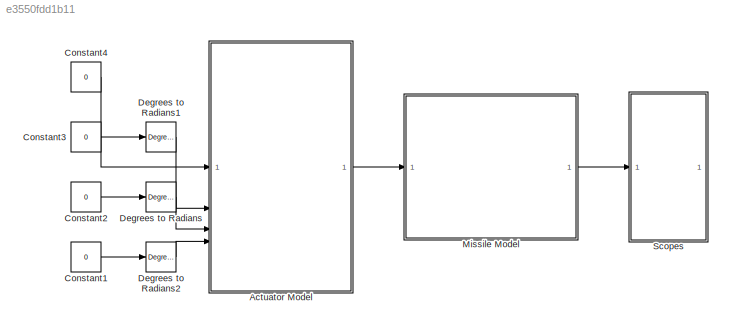
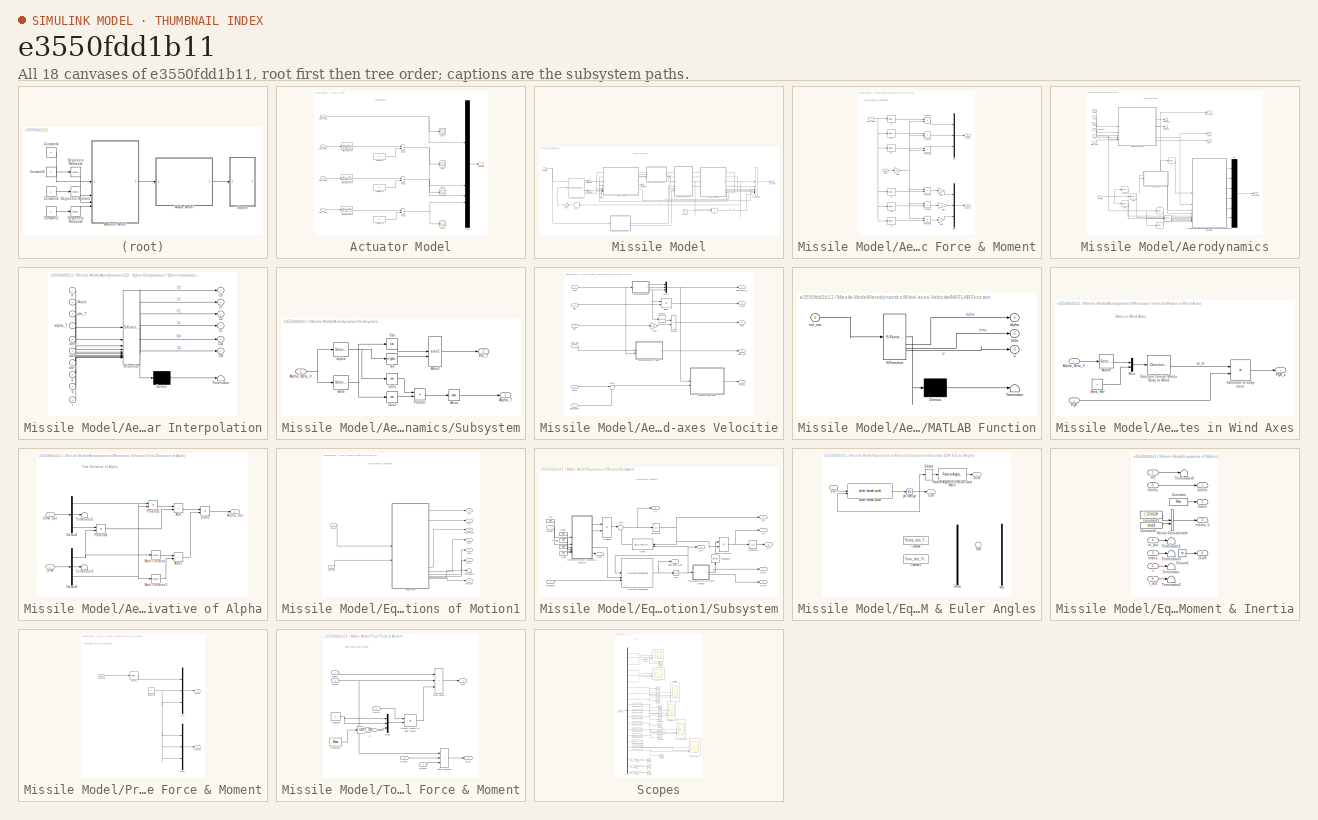
[diagram: thumbnail index - all 18 canvases of the model, root first then tree order]
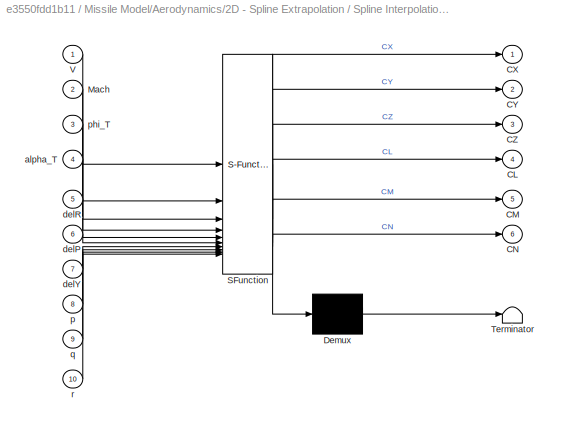
MODEL slx_e3550fdd1b11
KIND model
CONFIG AbsTol = auto
CONFIG EnableMultiTasking = off
CONFIG FixedStep = 0.01
CONFIG InitFcn = clc, clear, close all\nUAV_Data\nSim_Parameters
CONFIG MaxStep = auto
CONFIG MinStep = auto
CONFIG RelTol = 1e-3
CONFIG SampleTimeConstraint = Unconstrained
CONFIG SolverName = ode4
CONFIG StartTime = 0.0
CONFIG StopTime = 10
BLOCK [SubSystem] Actuator Model
BLOCK [TransferFcn] Actuator Model/Aileron Servo
  Denominator = [1 2*Zeta_Act*Wn_Act Wn_Act^2]
  Numerator = [Wn_Act^2]
BLOCK [Outport] Actuator Model/Controls
BLOCK [TransferFcn] Actuator Model/Elevator Servo
  Denominator = [1 2*Zeta_Act*Wn_Act Wn_Act^2]
  Numerator = [Wn_Act^2]
BLOCK [Mux] Actuator Model/Mux
  DisplayOption = bar
BLOCK [TransferFcn] Actuator Model/Rudder Servo
  Denominator = [1 2*Zeta_Act*Wn_Act Wn_Act^2]
  Numerator = [Wn_Act^2]
BLOCK [Sum] Actuator Model/Sum1
  IconShape = rectangular
  SaturateOnIntegerOverflow = on
BLOCK [Sum] Actuator Model/Sum2
  IconShape = rectangular
  SaturateOnIntegerOverflow = on
BLOCK [Sum] Actuator Model/Sum3
  IconShape = rectangular
  SaturateOnIntegerOverflow = on
BLOCK [Constant] Actuator Model/Trim del_T1
  Value = 0
BLOCK [Constant] Actuator Model/Trim del_T2
  Value = 0
BLOCK [Constant] Actuator Model/Trim del_T3
  Value = 0
BLOCK [Scope] Actuator Model/del_T
  Floating = off
  NumInputPorts = 1
  ScopeSpecificationString = Simulink.scopes.TimeScopeBlockCfg('CurrentConfiguration', extmgr.ConfigurationSet(extmgr.Configuration('Core','General UI',true),extmgr.Configuration('Core','Source UI',true),extmgr.Configuration('Sources','WiredSimulink',true,'DataLoggingVariableName','ScopeData1'),extmgr.Configuration('Visuals','Time Domain',true,'SerializedDisplays',{struct('MinYLimReal','-1.00000','MaxYLimReal','1.00000','YLab...<+1428ch>
BLOCK [Inport] Actuator Model/del_T_cmd
BLOCK [Scope] Actuator Model/del_a
  Floating = off
  NumInputPorts = 1
  ScopeSpecificationString = Simulink.scopes.TimeScopeBlockCfg('CurrentConfiguration', extmgr.ConfigurationSet(extmgr.Configuration('Core','General UI',true),extmgr.Configuration('Core','Source UI',true),extmgr.Configuration('Sources','WiredSimulink',true,'DataLoggingVariableName','ScopeData3'),extmgr.Configuration('Visuals','Time Domain',true,'SerializedDisplays',{struct('MinYLimReal','-1.00000','MaxYLimReal','1.00000','YLab...<+1388ch>
BLOCK [Inport] Actuator Model/del_a_cmd
  Port = 2
BLOCK [Scope] Actuator Model/del_e
  Floating = off
  NumInputPorts = 1
  ScopeSpecificationString = Simulink.scopes.TimeScopeBlockCfg('CurrentConfiguration', extmgr.ConfigurationSet(extmgr.Configuration('Core','General UI',true),extmgr.Configuration('Core','Source UI',true),extmgr.Configuration('Sources','WiredSimulink',true,'DataLoggingVariableName','ScopeData2'),extmgr.Configuration('Visuals','Time Domain',true,'SerializedDisplays',{struct('MinYLimReal','-1.00000','MaxYLimReal','1.00000','YLab...<+1388ch>
BLOCK [Inport] Actuator Model/del_e_cmd
  Port = 3
BLOCK [Scope] Actuator Model/del_r
  Floating = off
  NumInputPorts = 1
  ScopeSpecificationString = Simulink.scopes.TimeScopeBlockCfg('CurrentConfiguration', extmgr.ConfigurationSet(extmgr.Configuration('Core','General UI',true),extmgr.Configuration('Core','Source UI',true),extmgr.Configuration('Sources','WiredSimulink',true,'DataLoggingVariableName','ScopeData4'),extmgr.Configuration('Visuals','Time Domain',true,'SerializedDisplays',{struct('MinYLimReal','-1.00000','MaxYLimReal','1.00000','YLab...<+1388ch>
BLOCK [Inport] Actuator Model/del_r_cmd
  Port = 4
BLOCK [Constant] Constant1
  Value = 0
BLOCK [Constant] Constant2
  Value = 0
BLOCK [Constant] Constant3
  Value = 0
BLOCK [Constant] Constant4
  Value = 0
BLOCK [Reference] Degrees to Radians  REF=simulink_extras/Transformations/Degrees to
Radians
  SourceBlock = simulink_extras/Transformations/Degrees to\nRadians
  SourceType = DegreesToRadians
BLOCK [Reference] Degrees to Radians1  REF=simulink_extras/Transformations/Degrees to
Radians
  SourceBlock = simulink_extras/Transformations/Degrees to\nRadians
  SourceType = DegreesToRadians
BLOCK [Reference] Degrees to Radians2  REF=simulink_extras/Transformations/Degrees to
Radians
  SourceBlock = simulink_extras/Transformations/Degrees to\nRadians
  SourceType = DegreesToRadians
BLOCK [SubSystem] Missile Model
BLOCK [Product] Missile Model/Acc
  Inputs = */
  RndMeth = Zero
BLOCK [SubSystem] Missile Model/Aerodynamic Force & Moment
BLOCK [Inport] Missile Model/Aerodynamic Force & Moment/Aero_Coeff
BLOCK [Selector] Missile Model/Aerodynamic Force & Moment/CX
  IndexOptions = Index vector (dialog)
  Indices = [1]
  InputPortWidth = 6
  OutputSizes = 1
BLOCK [Selector] Missile Model/Aerodynamic Force & Moment/CY
  IndexOptions = Index vector (dialog)
  Indices = [2]
  InputPortWidth = 6
  OutputSizes = 1
BLOCK [Selector] Missile Model/Aerodynamic Force & Moment/CZ
  IndexOptions = Index vector (dialog)
  Indices = [3]
  InputPortWidth = 6
  OutputSizes = 1
BLOCK [Selector] Missile Model/Aerodynamic Force & Moment/Cl
  IndexOptions = Index vector (dialog)
  Indices = [4]
  InputPortWidth = 6
  OutputSizes = 1
BLOCK [Selector] Missile Model/Aerodynamic Force & Moment/Cm
  IndexOptions = Index vector (dialog)
  Indices = [5]
  InputPortWidth = 6
  OutputSizes = 1
BLOCK [Selector] Missile Model/Aerodynamic Force & Moment/Cn
  IndexOptions = Index vector (dialog)
  Indices = [6]
  InputPortWidth = 6
  OutputSizes = 1
BLOCK [Outport] Missile Model/Aerodynamic Force & Moment/F_aero
BLOCK [Gain] Missile Model/Aerodynamic Force & Moment/Gain
  Gain = S
BLOCK [Gain] Missile Model/Aerodynamic Force & Moment/Gain1
  Gain = D
BLOCK [Gain] Missile Model/Aerodynamic Force & Moment/Gain2
  Gain = D
BLOCK [Gain] Missile Model/Aerodynamic Force & Moment/Gain3
  Gain = D
BLOCK [Outport] Missile Model/Aerodynamic Force & Moment/M_aero
  Port = 2
BLOCK [Mux] Missile Model/Aerodynamic Force & Moment/Mux
  DisplayOption = bar
  Inputs = 3
BLOCK [Mux] Missile Model/Aerodynamic Force & Moment/Mux1
  DisplayOption = bar
  Inputs = 3
BLOCK [Product] Missile Model/Aerodynamic Force & Moment/Product
BLOCK [Product] Missile Model/Aerodynamic Force & Moment/Product1
BLOCK [Product] Missile Model/Aerodynamic Force & Moment/Product2
BLOCK [Product] Missile Model/Aerodynamic Force & Moment/Product3
BLOCK [Product] Missile Model/Aerodynamic Force & Moment/Product4
BLOCK [Product] Missile Model/Aerodynamic Force & Moment/Product5
BLOCK [Inport] Missile Model/Aerodynamic Force & Moment/qbar
  Port = 2
BLOCK [SubSystem] Missile Model/Aerodynamics
BLOCK [SubSystem] Missile Model/Aerodynamics/2D - Spline Extrapolation // Spline Interpolation 1D - Linear Extrapolation // Linear Interpolation
  ErrorFcn = Stateflow.Translate.translate
  LibrarySourceBlock = simulink/User-Defined\nFunctions/MATLAB Function
  PermitHierarchicalResolution = ExplicitOnly
  SFBlockType = MATLAB Function
  TreatAsAtomicUnit = on
BLOCK [Demux] Missile Model/Aerodynamics/2D - Spline Extrapolation // Spline Interpolation 1D - Linear Extrapolation // Linear Interpolation/ Demux 
  Outputs = 1
BLOCK [S-Function] Missile Model/Aerodynamics/2D - Spline Extrapolation // Spline Interpolation 1D - Linear Extrapolation // Linear Interpolation/ SFunction 
  EnableBusSupport = on
  FunctionName = sf_sfun
  PortCounts = [10 7]
  SFcnIsStateOwnerBlock = off
  SFunctionDeploymentMode = off
  Tag = Stateflow S-Function 3
BLOCK [Terminator] Missile Model/Aerodynamics/2D - Spline Extrapolation // Spline Interpolation 1D - Linear Extrapolation // Linear Interpolation/ Terminator 
BLOCK [Outport] Missile Model/Aerodynamics/2D - Spline Extrapolation // Spline Interpolation 1D - Linear Extrapolation // Linear Interpolation/CL
  Port = 4
BLOCK [Outport] Missile Model/Aerodynamics/2D - Spline Extrapolation // Spline Interpolation 1D - Linear Extrapolation // Linear Interpolation/CM
  Port = 5
BLOCK [Outport] Missile Model/Aerodynamics/2D - Spline Extrapolation // Spline Interpolation 1D - Linear Extrapolation // Linear Interpolation/CN
  Port = 6
BLOCK [Outport] Missile Model/Aerodynamics/2D - Spline Extrapolation // Spline Interpolation 1D - Linear Extrapolation // Linear Interpolation/CX
BLOCK [Outport] Missile Model/Aerodynamics/2D - Spline Extrapolation // Spline Interpolation 1D - Linear Extrapolation // Linear Interpolation/CY
  Port = 2
BLOCK [Outport] Missile Model/Aerodynamics/2D - Spline Extrapolation // Spline Interpolation 1D - Linear Extrapolation // Linear Interpolation/CZ
  Port = 3
BLOCK [Inport] Missile Model/Aerodynamics/2D - Spline Extrapolation // Spline Interpolation 1D - Linear Extrapolation // Linear Interpolation/Mach
  Port = 2
BLOCK [Inport] Missile Model/Aerodynamics/2D - Spline Extrapolation // Spline Interpolation 1D - Linear Extrapolation // Linear Interpolation/V
BLOCK [Inport] Missile Model/Aerodynamics/2D - Spline Extrapolation // Spline Interpolation 1D - Linear Extrapolation // Linear Interpolation/alpha_T
  Port = 4
BLOCK [Inport] Missile Model/Aerodynamics/2D - Spline Extrapolation // Spline Interpolation 1D - Linear Extrapolation // Linear Interpolation/delP
  Port = 6
BLOCK [Inport] Missile Model/Aerodynamics/2D - Spline Extrapolation // Spline Interpolation 1D - Linear Extrapolation // Linear Interpolation/delR
  Port = 5
BLOCK [Inport] Missile Model/Aerodynamics/2D - Spline Extrapolation // Spline Interpolation 1D - Linear Extrapolation // Linear Interpolation/delY
  Port = 7
BLOCK [Inport] Missile Model/Aerodynamics/2D - Spline Extrapolation // Spline Interpolation 1D - Linear Extrapolation // Linear Interpolation/p
  Port = 8
BLOCK [Inport] Missile Model/Aerodynamics/2D - Spline Extrapolation // Spline Interpolation 1D - Linear Extrapolation // Linear Interpolation/phi_T
  Port = 3
BLOCK [Inport] Missile Model/Aerodynamics/2D - Spline Extrapolation // Spline Interpolation 1D - Linear Extrapolation // Linear Interpolation/q
  Port = 9
BLOCK [Inport] Missile Model/Aerodynamics/2D - Spline Extrapolation // Spline Interpolation 1D - Linear Extrapolation // Linear Interpolation/r
  Port = 10
BLOCK [Outport] Missile Model/Aerodynamics/Aero_Coeff
BLOCK [Outport] Missile Model/Aerodynamics/Alpha_Beta_V
  Port = 4
BLOCK [Inport] Missile Model/Aerodynamics/Controls
BLOCK [Outport] Missile Model/Aerodynamics/Mach
  Port = 3
BLOCK [Mux] Missile Model/Aerodynamics/Mux
  DisplayOption = bar
  Inputs = 6
BLOCK [Inport] Missile Model/Aerodynamics/PQR
  Port = 3
BLOCK [Inport] Missile Model/Aerodynamics/Rho
  Port = 6
BLOCK [Inport] Missile Model/Aerodynamics/SoS
  Port = 5
BLOCK [SubSystem] Missile Model/Aerodynamics/Subsystem
BLOCK [Trigonometry] Missile Model/Aerodynamics/Subsystem/Acos
  Operator = acos
BLOCK [Inport] Missile Model/Aerodynamics/Subsystem/Alpha_Beta_V
BLOCK [Outport] Missile Model/Aerodynamics/Subsystem/Alpha_T
  Port = 2
BLOCK [Trigonometry] Missile Model/Aerodynamics/Subsystem/Atan2
  Operator = atan2
BLOCK [Selector] Missile Model/Aerodynamics/Subsystem/Beta
  IndexOptions = Index vector (dialog)
  Indices = [2]
  InputPortWidth = 3
  OutputSizes = 1
BLOCK [Trigonometry] Missile Model/Aerodynamics/Subsystem/Cos1
  Operator = cos
BLOCK [Trigonometry] Missile Model/Aerodynamics/Subsystem/Cos2
  Operator = cos
BLOCK [Outport] Missile Model/Aerodynamics/Subsystem/Phi_T
BLOCK [Product] Missile Model/Aerodynamics/Subsystem/Product
BLOCK [Trigonometry] Missile Model/Aerodynamics/Subsystem/Sin
BLOCK [Trigonometry] Missile Model/Aerodynamics/Subsystem/Tan
  Operator = tan
BLOCK [Selector] Missile Model/Aerodynamics/Subsystem/alpha
  IndexOptions = Index vector (dialog)
  Indices = [1]
  InputPortWidth = 3
  OutputSizes = 1
BLOCK [Terminator] Missile Model/Aerodynamics/Terminator
BLOCK [Terminator] Missile Model/Aerodynamics/Terminator1
BLOCK [Inport] Missile Model/Aerodynamics/UVW
  Port = 2
BLOCK [Inport] Missile Model/Aerodynamics/UVW_dot 
  Port = 4
BLOCK [Selector] Missile Model/Aerodynamics/V
  IndexOptions = Index vector (dialog)
  Indices = [3]
  InputPortWidth = 3
  OutputSizes = 1
BLOCK [SubSystem] Missile Model/Aerodynamics/Wind-axes Velocitie
BLOCK [Outport] Missile Model/Aerodynamics/Wind-axes Velocitie/Alpha_Beta_V
BLOCK [Product] Missile Model/Aerodynamics/Wind-axes Velocitie/Divide
  Inputs = */
BLOCK [Gain] Missile Model/Aerodynamics/Wind-axes Velocitie/Gain
  Gain = 0.5
BLOCK [SubSystem] Missile Model/Aerodynamics/Wind-axes Velocitie/MATLAB Function
  ErrorFcn = Stateflow.Translate.translate
  LibrarySourceBlock = simulink/User-Defined\nFunctions/MATLAB Function
  PermitHierarchicalResolution = ExplicitOnly
  SFBlockType = MATLAB Function
  TreatAsAtomicUnit = on
BLOCK [Demux] Missile Model/Aerodynamics/Wind-axes Velocitie/MATLAB Function/ Demux 
  Outputs = 1
BLOCK [S-Function] Missile Model/Aerodynamics/Wind-axes Velocitie/MATLAB Function/ SFunction 
  EnableBusSupport = on
  FunctionName = sf_sfun
  PortCounts = [1 4]
  SFcnIsStateOwnerBlock = off
  SFunctionDeploymentMode = off
  Tag = Stateflow S-Function 1
BLOCK [Terminator] Missile Model/Aerodynamics/Wind-axes Velocitie/MATLAB Function/ Terminator 
BLOCK [Outport] Missile Model/Aerodynamics/Wind-axes Velocitie/MATLAB Function/V
  Port = 3
BLOCK [Outport] Missile Model/Aerodynamics/Wind-axes Velocitie/MATLAB Function/alpha
BLOCK [Outport] Missile Model/Aerodynamics/Wind-axes Velocitie/MATLAB Function/beta
  Port = 2
BLOCK [Inport] Missile Model/Aerodynamics/Wind-axes Velocitie/MATLAB Function/vel_vec
BLOCK [Outport] Missile Model/Aerodynamics/Wind-axes Velocitie/Mach
  Port = 4
BLOCK [Mux] Missile Model/Aerodynamics/Wind-axes Velocitie/Mux1
  DisplayOption = bar
  Inputs = 3
BLOCK [Inport] Missile Model/Aerodynamics/Wind-axes Velocitie/PQR
  Port = 5
BLOCK [Outport] Missile Model/Aerodynamics/Wind-axes Velocitie/PQR_s
  Port = 2
BLOCK [Product] Missile Model/Aerodynamics/Wind-axes Velocitie/Product
BLOCK [SubSystem] Missile Model/Aerodynamics/Wind-axes Velocitie/Rates in Wind Axes
BLOCK [Selector] Missile Model/Aerodynamics/Wind-axes Velocitie/Rates in Wind Axes/Alpha
  IndexOptions = Index vector (dialog)
  Indices = [1]
  InputPortWidth = 3
  OutputSizes = 1
BLOCK [Inport] Missile Model/Aerodynamics/Wind-axes Velocitie/Rates in Wind Axes/Alpha_Beta_V
BLOCK [Constant] Missile Model/Aerodynamics/Wind-axes Velocitie/Rates in Wind Axes/Beta_Ref
  Value = 0
BLOCK [Reference] Missile Model/Aerodynamics/Wind-axes Velocitie/Rates in Wind Axes/Direction Cosine Matrix Body to Wind  REF=aerolibtransform2/Direction Cosine Matrix
Body to Wind
  SourceBlock = aerolibtransform2/Direction Cosine Matrix\nBody to Wind
  SourceType = DCM Body to Wind
BLOCK [Mux] Missile Model/Aerodynamics/Wind-axes Velocitie/Rates in Wind Axes/Mux
  DisplayOption = bar
  Inputs = 2
BLOCK [Inport] Missile Model/Aerodynamics/Wind-axes Velocitie/Rates in Wind Axes/PQR
  Port = 2
BLOCK [Outport] Missile Model/Aerodynamics/Wind-axes Velocitie/Rates in Wind Axes/PQR_s
BLOCK [Product] Missile Model/Aerodynamics/Wind-axes Velocitie/Rates in Wind Axes/transform to body axes
  InputSameDT = on
  Inputs = **
  Multiplication = Matrix(*)
  OutDataTypeStr = Inherit: Same as first input
  SaturateOnIntegerOverflow = on
BLOCK [Inport] Missile Model/Aerodynamics/Wind-axes Velocitie/Rho
  Port = 3
BLOCK [Inport] Missile Model/Aerodynamics/Wind-axes Velocitie/SoS
  Port = 2
BLOCK [Math] Missile Model/Aerodynamics/Wind-axes Velocitie/Square
  Operator = square
BLOCK [Sum] Missile Model/Aerodynamics/Wind-axes Velocitie/Sum3
  InputSameDT = on
  Inputs = |+-
  OutDataTypeStr = Inherit: Same as first input
  SaturateOnIntegerOverflow = on
BLOCK [SubSystem] Missile Model/Aerodynamics/Wind-axes Velocitie/Time-Derivative of Alpha
BLOCK [Sum] Missile Model/Aerodynamics/Wind-axes Velocitie/Time-Derivative of Alpha/Add
  IconShape = rectangular
  Inputs = -+
BLOCK [Sum] Missile Model/Aerodynamics/Wind-axes Velocitie/Time-Derivative of Alpha/Add1
  IconShape = rectangular
BLOCK [Outport] Missile Model/Aerodynamics/Wind-axes Velocitie/Time-Derivative of Alpha/Alpha_dot
BLOCK [Demux] Missile Model/Aerodynamics/Wind-axes Velocitie/Time-Derivative of Alpha/Demux2
  Outputs = 3
BLOCK [Demux] Missile Model/Aerodynamics/Wind-axes Velocitie/Time-Derivative of Alpha/Demux3
  Outputs = 3
BLOCK [Product] Missile Model/Aerodynamics/Wind-axes Velocitie/Time-Derivative of Alpha/Divide
  Inputs = */
BLOCK [Math] Missile Model/Aerodynamics/Wind-axes Velocitie/Time-Derivative of Alpha/Math Function2
  Operator = square
  SignedPower = on
BLOCK [Math] Missile Model/Aerodynamics/Wind-axes Velocitie/Time-Derivative of Alpha/Math Function3
  Operator = square
  SignedPower = on
BLOCK [Product] Missile Model/Aerodynamics/Wind-axes Velocitie/Time-Derivative of Alpha/Product3
BLOCK [Product] Missile Model/Aerodynamics/Wind-axes Velocitie/Time-Derivative of Alpha/Product4
BLOCK [Terminator] Missile Model/Aerodynamics/Wind-axes Velocitie/Time-Derivative of Alpha/Terminator2
BLOCK [Terminator] Missile Model/Aerodynamics/Wind-axes Velocitie/Time-Derivative of Alpha/Terminator3
BLOCK [Inport] Missile Model/Aerodynamics/Wind-axes Velocitie/Time-Derivative of Alpha/UVW
  Port = 2
BLOCK [Inport] Missile Model/Aerodynamics/Wind-axes Velocitie/Time-Derivative of Alpha/UVW_dot
BLOCK [Inport] Missile Model/Aerodynamics/Wind-axes Velocitie/UVW
BLOCK [Inport] Missile Model/Aerodynamics/Wind-axes Velocitie/UVW_dot
  Port = 4
BLOCK [Inport] Missile Model/Aerodynamics/Wind-axes Velocitie/Wind_Rate
  Port = 6
BLOCK [Outport] Missile Model/Aerodynamics/Wind-axes Velocitie/alpha_dot
  Port = 3
BLOCK [Outport] Missile Model/Aerodynamics/Wind-axes Velocitie/qbar
  Port = 5
BLOCK [Inport] Missile Model/Aerodynamics/Wind_Rate
  Port = 7
BLOCK [Selector] Missile Model/Aerodynamics/delP
  IndexOptions = Index vector (dialog)
  Indices = [3]
  InputPortWidth = 4
  OutputSizes = 1
BLOCK [Selector] Missile Model/Aerodynamics/delR
  IndexOptions = Index vector (dialog)
  Indices = [2]
  InputPortWidth = 4
  OutputSizes = 1
BLOCK [Selector] Missile Model/Aerodynamics/delY
  IndexOptions = Index vector (dialog)
  Indices = [4]
  InputPortWidth = 4
  OutputSizes = 1
BLOCK [Selector] Missile Model/Aerodynamics/p
  IndexOptions = Index vector (dialog)
  Indices = [1]
  InputPortWidth = 3
  OutputSizes = 1
BLOCK [Selector] Missile Model/Aerodynamics/q
  IndexOptions = Index vector (dialog)
  Indices = [2]
  InputPortWidth = 3
  OutputSizes = 1
BLOCK [Outport] Missile Model/Aerodynamics/qbar
  Port = 2
BLOCK [Selector] Missile Model/Aerodynamics/r
  IndexOptions = Index vector (dialog)
  Indices = [3]
  InputPortWidth = 3
  OutputSizes = 1
BLOCK [BusCreator] Missile Model/Bus Creator
  DisplayOption = bar
  InheritFromInputs = on
  Inputs = 7
BLOCK [Constant] Missile Model/Constant
  Value = Mass
BLOCK [Inport] Missile Model/Controls
BLOCK [SubSystem] Missile Model/Equations of Motion1
BLOCK [Inport] Missile Model/Equations of Motion1/Force
  PortDimensions = 3
BLOCK [Inport] Missile Model/Equations of Motion1/Moment
  Port = 2
  PortDimensions = 3
BLOCK [Outport] Missile Model/Equations of Motion1/PQR
  Port = 4
BLOCK [Outport] Missile Model/Equations of Motion1/Phi_The_Psi
  Port = 5
BLOCK [SubSystem] Missile Model/Equations of Motion1/Subsystem
BLOCK [Outport] Missile Model/Equations of Motion1/Subsystem/Ab
  Port = 8
BLOCK [SubSystem] Missile Model/Equations of Motion1/Subsystem/Calculate DCM & Euler Angles
BLOCK [Constant] Missile Model/Equations of Motion1/Subsystem/Calculate DCM & Euler Angles/Constant
  Commented = on
  Value = Theta_dot_Trim
BLOCK [Constant] Missile Model/Equations of Motion1/Subsystem/Calculate DCM & Euler Angles/Constant1
  Commented = on
  Value = Turn_dot_Trim
BLOCK [Outport] Missile Model/Equations of Motion1/Subsystem/Calculate DCM & Euler Angles/DCM
BLOCK [Demux] Missile Model/Equations of Motion1/Subsystem/Calculate DCM & Euler Angles/Demux
  Commented = on
  Outputs = 3
BLOCK [Outport] Missile Model/Equations of Motion1/Subsystem/Calculate DCM & Euler Angles/Euler
  Port = 2
BLOCK [Mux] Missile Model/Equations of Motion1/Subsystem/Calculate DCM & Euler Angles/Mux
  Commented = on
  DisplayOption = bar
  Inputs = 3
BLOCK [Reference] Missile Model/Equations of Motion1/Subsystem/Calculate DCM & Euler Angles/Rotation Angles to Direction Cosine Matrix  REF=sharedtransform/Rotation Angles to
Direction Cosine Matrix
  AttributesFormatString = Rotation Order: %<rotationOrder>
  LibrarySourceBlock = aerolibtransform2/Rotation Angles to\nDirection Cosine Matrix
  SourceBlock = sharedtransform/Rotation Angles to\nDirection Cosine Matrix
  SourceType = Ang2DCM
BLOCK [Selector] Missile Model/Equations of Motion1/Subsystem/Calculate DCM & Euler Angles/Selector
  IndexOptions = Index vector (dialog)
  Indices = [3 2 1]
  InputPortWidth = 3
  OutputSizes = 1
BLOCK [Sum] Missile Model/Equations of Motion1/Subsystem/Calculate DCM & Euler Angles/Sum
  Commented = on
  Inputs = |+-
BLOCK [Inport] Missile Model/Equations of Motion1/Subsystem/Calculate DCM & Euler Angles/p q r 
BLOCK [Integrator] Missile Model/Equations of Motion1/Subsystem/Calculate DCM & Euler Angles/phi theta psi
  InitialCondition = Init_Euler
BLOCK [Reference] Missile Model/Equations of Motion1/Subsystem/Calculate DCM & Euler Angles/phidot thetadot psidot  REF=shared6dofsys/DCM & Euler Angles (Euler)/phidot  (lib defined in slx_91fbb8bad28b)
thetadot
psidot
  SourceBlock = shared6dofsys/DCM & Euler Angles (Euler)/phidot\nthetadot\npsidot
  SourceType = SubSystem
BLOCK [Reference] Missile Model/Equations of Motion1/Subsystem/Calculate omega_dot  REF=shared6dofsys/Calculate omega_dot  (lib defined in slx_91fbb8bad28b)
  SourceBlock = shared6dofsys/Calculate omega_dot
BLOCK [Outport] Missile Model/Equations of Motion1/Subsystem/DCM
  Port = 4
BLOCK [SubSystem] Missile Model/Equations of Motion1/Subsystem/Determine Force, Moment & Inertia
BLOCK [Constant] Missile Model/Equations of Motion1/Subsystem/Determine Force, Moment & Inertia/Constant
  OutDataTypeStr = Inherit: Inherit via back propagation
  Value = Mass
BLOCK [Constant] Missile Model/Equations of Motion1/Subsystem/Determine Force, Moment & Inertia/Constant1
  OutDataTypeStr = Inherit: Inherit via back propagation
  Value = I_TENSOR
BLOCK [Constant] Missile Model/Equations of Motion1/Subsystem/Determine Force, Moment & Inertia/Constant2
  Value = zeros(3)
BLOCK [Ground] Missile Model/Equations of Motion1/Subsystem/Determine Force, Moment & Inertia/Ground
BLOCK [Inport] Missile Model/Equations of Motion1/Subsystem/Determine Force, Moment & Inertia/I
  OutDataTypeStr = double
  Port = 5
BLOCK [Inport] Missile Model/Equations of Motion1/Subsystem/Determine Force, Moment & Inertia/I_dot
  OutDataTypeStr = double
  Port = 6
BLOCK [Outport] Missile Model/Equations of Motion1/Subsystem/Determine Force, Moment & Inertia/Out9
  Port = 4
BLOCK [Terminator] Missile Model/Equations of Motion1/Subsystem/Determine Force, Moment & Inertia/Terminator
BLOCK [Terminator] Missile Model/Equations of Motion1/Subsystem/Determine Force, Moment & Inertia/Terminator1
BLOCK [Terminator] Missile Model/Equations of Motion1/Subsystem/Determine Force, Moment & Inertia/Terminator2
BLOCK [Terminator] Missile Model/Equations of Motion1/Subsystem/Determine Force, Moment & Inertia/Terminator3
BLOCK [Terminator] Missile Model/Equations of Motion1/Subsystem/Determine Force, Moment & Inertia/Terminator4
BLOCK [Concatenate] Missile Model/Equations of Motion1/Subsystem/Determine Force, Moment & Inertia/Vector Concatenate
  Mode = Multidimensional array
BLOCK [Inport] Missile Model/Equations of Motion1/Subsystem/Determine Force, Moment & Inertia/Vre
BLOCK [Inport] Missile Model/Equations of Motion1/Subsystem/Determine Force, Moment & Inertia/forces
  Port = 2
BLOCK [Outport] Missile Model/Equations of Motion1/Subsystem/Determine Force, Moment & Inertia/forces 
BLOCK [Outport] Missile Model/Equations of Motion1/Subsystem/Determine Force, Moment & Inertia/inertia, 0
  Port = 3
BLOCK [Inport] Missile Model/Equations of Motion1/Subsystem/Determine Force, Moment & Inertia/m_dot
  OutDataTypeStr = double
  Port = 4
BLOCK [Outport] Missile Model/Equations of Motion1/Subsystem/Determine Force, Moment & Inertia/mass
  Port = 2
BLOCK [Inport] Missile Model/Equations of Motion1/Subsystem/Determine Force, Moment & Inertia/mass 
  Port = 3
BLOCK [Outport] Missile Model/Equations of Motion1/Subsystem/Euler
  Port = 3
BLOCK [Inport] Missile Model/Equations of Motion1/Subsystem/Forces
  PortDimensions = 3
BLOCK [Ground] Missile Model/Equations of Motion1/Subsystem/I
BLOCK [Ground] Missile Model/Equations of Motion1/Subsystem/I_dot
BLOCK [Integrator] Missile Model/Equations of Motion1/Subsystem/Integrator
  InitialCondition = Init_Pos
BLOCK [Product] Missile Model/Equations of Motion1/Subsystem/Matrix Multiply
  Multiplication = Matrix(*)
BLOCK [Inport] Missile Model/Equations of Motion1/Subsystem/Moments
  Port = 2
  PortDimensions = 3
BLOCK [Terminator] Missile Model/Equations of Motion1/Subsystem/Out9
BLOCK [Product] Missile Model/Equations of Motion1/Subsystem/Product
  Inputs = */
  OutDataTypeStr = Inherit: Same as first input
  SaturateOnIntegerOverflow = on
BLOCK [Sum] Missile Model/Equations of Motion1/Subsystem/Sum
  Inputs = |++
  SaturateOnIntegerOverflow = on
BLOCK [Math] Missile Model/Equations of Motion1/Subsystem/Transpose
  NameLocation = right
  Operator = transpose
  SignedPower = on
BLOCK [Outport] Missile Model/Equations of Motion1/Subsystem/Vb
  Port = 5
BLOCK [Reference] Missile Model/Equations of Motion1/Subsystem/Vbxw  REF=sharedutil/3x3 Cross Product
  LibrarySourceBlock = aerolibutil/3x3 Cross Product
  SourceBlock = sharedutil/3x3 Cross Product
  SourceType = CrossProduct
BLOCK [Outport] Missile Model/Equations of Motion1/Subsystem/Ve
BLOCK [Ground] Missile Model/Equations of Motion1/Subsystem/Vre
BLOCK [Outport] Missile Model/Equations of Motion1/Subsystem/Xe
  Port = 2
BLOCK [Ground] Missile Model/Equations of Motion1/Subsystem/m_dot
BLOCK [Ground] Missile Model/Equations of Motion1/Subsystem/mass
BLOCK [Outport] Missile Model/Equations of Motion1/Subsystem/p,q,r
  Port = 6
BLOCK [Integrator] Missile Model/Equations of Motion1/Subsystem/p,q,r 
  InitialCondition = Init_Rate
BLOCK [Outport] Missile Model/Equations of Motion1/Subsystem/pdot,qdot,rdot
  Port = 7
BLOCK [Integrator] Missile Model/Equations of Motion1/Subsystem/ub,vb,wb
  InitialCondition = Init_Vel
BLOCK [Terminator] Missile Model/Equations of Motion1/Terminator
BLOCK [Outport] Missile Model/Equations of Motion1/UVW
  Port = 3
BLOCK [Outport] Missile Model/Equations of Motion1/UVW_dot
  Port = 6
BLOCK [Outport] Missile Model/Equations of Motion1/V_e
  Port = 2
BLOCK [Outport] Missile Model/Equations of Motion1/X_e
BLOCK [Outport] Missile Model/Equations of Motion1/cE_B
  Port = 7
BLOCK [Gain] Missile Model/Gain
  Gain = -1
BLOCK [Ground] Missile Model/Ground
BLOCK [Reference] Missile Model/ISA Atmosphere Model  REF=aerolibatmos2/ISA Atmosphere Model
  SourceBlock = aerolibatmos2/ISA Atmosphere Model
  SourceType = International Standard Atmosphere Model
BLOCK [SubSystem] Missile Model/Propulsive Force & Moment
BLOCK [Constant] Missile Model/Propulsive Force & Moment/Constant
  Value = 0
BLOCK [Inport] Missile Model/Propulsive Force & Moment/Controls
BLOCK [Outport] Missile Model/Propulsive Force & Moment/F_prop
BLOCK [Outport] Missile Model/Propulsive Force & Moment/M_prop
  Port = 2
BLOCK [Mux] Missile Model/Propulsive Force & Moment/Mux
  DisplayOption = bar
  Inputs = 3
BLOCK [Mux] Missile Model/Propulsive Force & Moment/Mux1
  DisplayOption = bar
  Inputs = 3
BLOCK [Selector] Missile Model/Propulsive Force & Moment/Thrust
  IndexOptions = Index vector (dialog)
  Indices = [1]
  InputPortWidth = 4
  OutputSizes = 1
BLOCK [Terminator] Missile Model/Terminator
BLOCK [Terminator] Missile Model/Terminator1
BLOCK [Terminator] Missile Model/Terminator2
BLOCK [SubSystem] Missile Model/Total Force & Moment
BLOCK [Constant] Missile Model/Total Force & Moment/Constant
  Value = 0
BLOCK [Constant] Missile Model/Total Force & Moment/Constant1
  Value = Mass
BLOCK [Inport] Missile Model/Total Force & Moment/DCM
  Port = 4
BLOCK [Inport] Missile Model/Total Force & Moment/F_aero
  PortDimensions = 3
BLOCK [Outport] Missile Model/Total Force & Moment/F_cg
BLOCK [Inport] Missile Model/Total Force & Moment/F_prop
  Port = 3
  PortDimensions = 3
BLOCK [Product] Missile Model/Total Force & Moment/Gravity vector in body frame 
  InputSameDT = on
  Multiplication = Matrix(*)
  OutDataTypeStr = Inherit: Same as first input
  SaturateOnIntegerOverflow = on
BLOCK [Inport] Missile Model/Total Force & Moment/M_aero
  Port = 2
  PortDimensions = 3
BLOCK [Outport] Missile Model/Total Force & Moment/M_cg
  Port = 2
BLOCK [Inport] Missile Model/Total Force & Moment/M_prop
  Port = 5
  PortDimensions = 3
BLOCK [Mux] Missile Model/Total Force & Moment/Mux1
  DisplayOption = bar
  Inputs = 3
BLOCK [Sum] Missile Model/Total Force & Moment/Total Force
  IconShape = rectangular
  InputSameDT = on
  Inputs = +++
  OutDataTypeStr = Inherit: Same as first input
  SaturateOnIntegerOverflow = on
BLOCK [Sum] Missile Model/Total Force & Moment/Total Moment
  IconShape = rectangular
  InputSameDT = on
  Inputs = +++
  OutDataTypeStr = Inherit: Same as first input
  SaturateOnIntegerOverflow = on
BLOCK [Gain] Missile Model/Total Force & Moment/g
  Gain = UNIT_GRAV
BLOCK [Outport] Missile Model/UAS State
BLOCK [Selector] Missile Model/Z_e
  IndexOptions = Index vector (dialog)
  Indices = [3]
  InputPortWidth = 3
  OutputSizes = 1
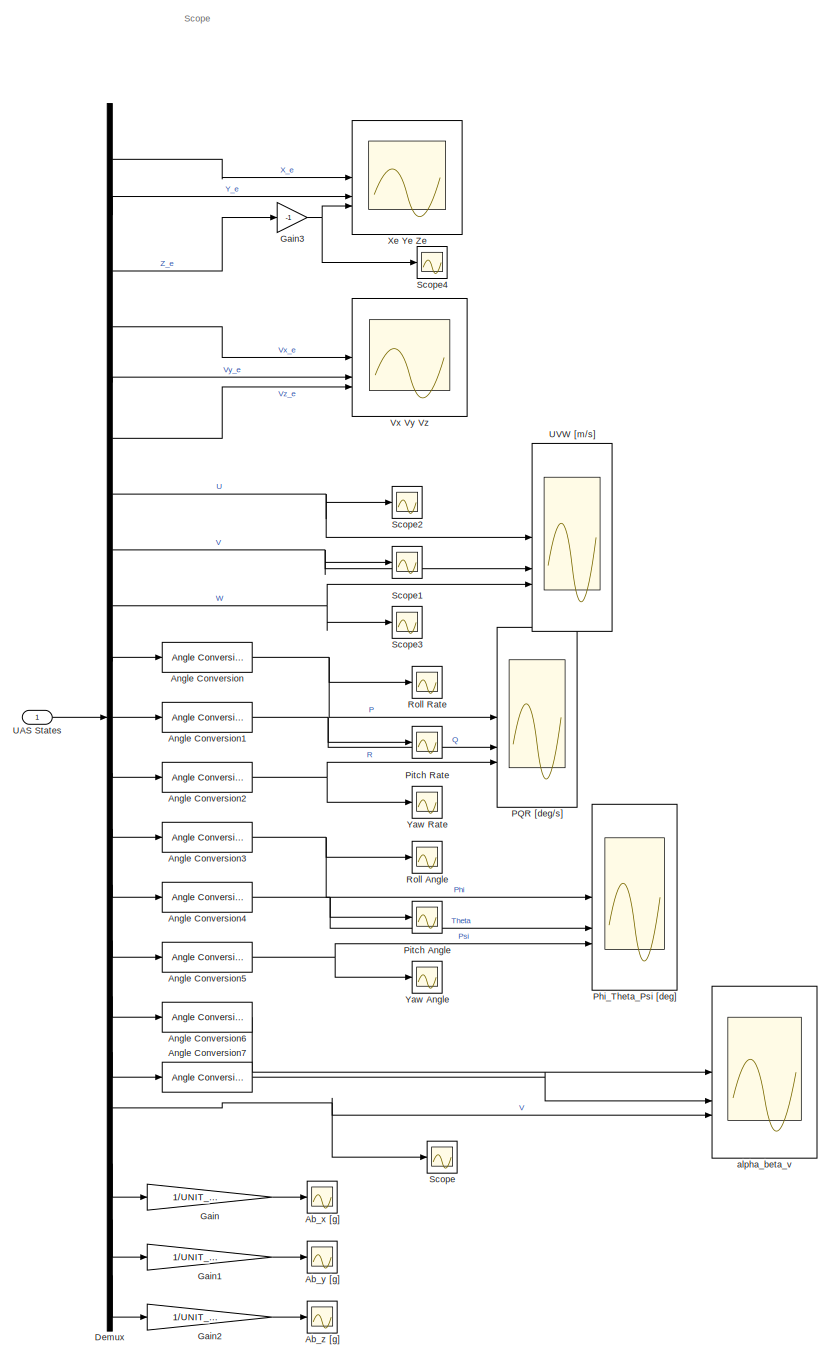
[diagram: Scopes - part 1/1, most of the canvas]
BLOCK [SubSystem] Scopes
BLOCK [Scope] Scopes/Ab_x [g]
  Floating = off
  NumInputPorts = 1
  ScopeSpecificationString = Simulink.scopes.TimeScopeBlockCfg('CurrentConfiguration', extmgr.ConfigurationSet(extmgr.Configuration('Core','General UI',true),extmgr.Configuration('Core','Source UI',true),extmgr.Configuration('Sources','WiredSimulink',true,'DataLoggingVariableName','Xe18','DataLoggingSaveFormat','Array'),extmgr.Configuration('Visuals','Time Domain',true,'SerializedDisplays',{struct('MinYLimReal','-0.6676','Max...<+1412ch>
BLOCK [Scope] Scopes/Ab_y [g]
  Floating = off
  NumInputPorts = 1
  ScopeSpecificationString = Simulink.scopes.TimeScopeBlockCfg('CurrentConfiguration', extmgr.ConfigurationSet(extmgr.Configuration('Core','General UI',true),extmgr.Configuration('Core','Source UI',true),extmgr.Configuration('Sources','WiredSimulink',true,'DataLoggingVariableName','Xe19','DataLoggingSaveFormat','Array'),extmgr.Configuration('Visuals','Time Domain',true,'SerializedDisplays',{struct('MinYLimReal','-1.00000','Ma...<+1415ch>
BLOCK [Scope] Scopes/Ab_z [g]
  Floating = off
  NumInputPorts = 1
  ScopeSpecificationString = Simulink.scopes.TimeScopeBlockCfg('CurrentConfiguration', extmgr.ConfigurationSet(extmgr.Configuration('Core','General UI',true),extmgr.Configuration('Core','Source UI',true),extmgr.Configuration('Sources','WiredSimulink',true,'DataLoggingVariableName','Xe20','DataLoggingSaveFormat','Array'),extmgr.Configuration('Visuals','Time Domain',true,'SerializedDisplays',{struct('MinYLimReal','-0.14493','Ma...<+1390ch>
BLOCK [Reference] Scopes/Angle Conversion  REF=aerolibconvert2/Angle Conversion
  SourceBlock = aerolibconvert2/Angle Conversion
  SourceType = Angle Conversion
BLOCK [Reference] Scopes/Angle Conversion1  REF=aerolibconvert2/Angle Conversion
  SourceBlock = aerolibconvert2/Angle Conversion
  SourceType = Angle Conversion
BLOCK [Reference] Scopes/Angle Conversion2  REF=aerolibconvert2/Angle Conversion
  SourceBlock = aerolibconvert2/Angle Conversion
  SourceType = Angle Conversion
BLOCK [Reference] Scopes/Angle Conversion3  REF=aerolibconvert2/Angle Conversion
  SourceBlock = aerolibconvert2/Angle Conversion
  SourceType = Angle Conversion
BLOCK [Reference] Scopes/Angle Conversion4  REF=aerolibconvert2/Angle Conversion
  SourceBlock = aerolibconvert2/Angle Conversion
  SourceType = Angle Conversion
BLOCK [Reference] Scopes/Angle Conversion5  REF=aerolibconvert2/Angle Conversion
  SourceBlock = aerolibconvert2/Angle Conversion
  SourceType = Angle Conversion
BLOCK [Reference] Scopes/Angle Conversion6  REF=aerolibconvert2/Angle Conversion
  SourceBlock = aerolibconvert2/Angle Conversion
  SourceType = Angle Conversion
BLOCK [Reference] Scopes/Angle Conversion7  REF=aerolibconvert2/Angle Conversion
  SourceBlock = aerolibconvert2/Angle Conversion
  SourceType = Angle Conversion
BLOCK [Demux] Scopes/Demux
  Outputs = 21
BLOCK [Gain] Scopes/Gain
  Gain = 1/UNIT_GRAV
BLOCK [Gain] Scopes/Gain1
  Gain = 1/UNIT_GRAV
BLOCK [Gain] Scopes/Gain2
  Gain = 1/UNIT_GRAV
BLOCK [Gain] Scopes/Gain3
  Gain = -1
BLOCK [Scope] Scopes/PQR [deg//s]
  Floating = off
  NumInputPorts = 3
  ScopeSpecificationString = Simulink.scopes.TimeScopeBlockCfg('CurrentConfiguration', extmgr.ConfigurationSet(extmgr.Configuration('Core','General UI',true),extmgr.Configuration('Core','Source UI',true),extmgr.Configuration('Sources','WiredSimulink',true,'DataLoggingVariableName','ScopeData1'),extmgr.Configuration('Visuals','Time Domain',true,'SerializedDisplays',{struct('MinYLimReal','-0.000006','MaxYLimReal','0.000053','YL...<+2810ch>
BLOCK [Scope] Scopes/Phi_Theta_Psi [deg]
  Floating = off
  NumInputPorts = 3
  ScopeSpecificationString = Simulink.scopes.TimeScopeBlockCfg('CurrentConfiguration', extmgr.ConfigurationSet(extmgr.Configuration('Core','General UI',true),extmgr.Configuration('Core','Source UI',true),extmgr.Configuration('Sources','WiredSimulink',true,'DataLoggingVariableName','ScopeData3'),extmgr.Configuration('Visuals','Time Domain',true,'SerializedDisplays',{struct('MinYLimReal','59.99937','MaxYLimReal','60.00525','YLa...<+2764ch>
BLOCK [Scope] Scopes/Pitch Angle
  Floating = off
  NumInputPorts = 1
  ScopeSpecificationString = Simulink.scopes.TimeScopeBlockCfg('CurrentConfiguration', extmgr.ConfigurationSet(extmgr.Configuration('Core','General UI',true),extmgr.Configuration('Core','Source UI',true),extmgr.Configuration('Sources','WiredSimulink',true,'DataLoggingVariableName','ScopeData7'),extmgr.Configuration('Visuals','Time Domain',true),extmgr.Configuration('Tools','Plot Navigation',true),extmgr.Configuration('Tools',...<+40ch>
BLOCK [Scope] Scopes/Pitch Rate
  Floating = off
  NumInputPorts = 1
  ScopeSpecificationString = Simulink.scopes.TimeScopeBlockCfg('CurrentConfiguration', extmgr.ConfigurationSet(extmgr.Configuration('Core','General UI',true),extmgr.Configuration('Core','Source UI',true),extmgr.Configuration('Sources','WiredSimulink',true,'DataLoggingVariableName','ScopeData3'),extmgr.Configuration('Visuals','Time Domain',true,'SerializedDisplays',{struct('MinYLimReal','-4.79677','MaxYLimReal','0.53297','YLab...<+1492ch>
BLOCK [Scope] Scopes/Roll Angle
  Floating = off
  NumInputPorts = 1
  ScopeSpecificationString = Simulink.scopes.TimeScopeBlockCfg('CurrentConfiguration', extmgr.ConfigurationSet(extmgr.Configuration('Core','General UI',true),extmgr.Configuration('Core','Source UI',true),extmgr.Configuration('Sources','WiredSimulink',true,'DataLoggingVariableName','ScopeData6'),extmgr.Configuration('Visuals','Time Domain',true,'SerializedDisplays',{struct('MinYLimReal','59.99909','MaxYLimReal','60.00006','YLa...<+1540ch>
BLOCK [Scope] Scopes/Roll Rate
  Floating = off
  NumInputPorts = 1
  ScopeSpecificationString = Simulink.scopes.TimeScopeBlockCfg('CurrentConfiguration', extmgr.ConfigurationSet(extmgr.Configuration('Core','General UI',true),extmgr.Configuration('Core','Source UI',true),extmgr.Configuration('Sources','WiredSimulink',true,'DataLoggingVariableName','ScopeData2'),extmgr.Configuration('Visuals','Time Domain',true,'SerializedDisplays',{struct('MinYLimReal','-0.000006','MaxYLimReal','0.000053','YL...<+1509ch>
BLOCK [Scope] Scopes/Scope
  Floating = off
  NumInputPorts = 1
  ScopeSpecificationString = Simulink.scopes.TimeScopeBlockCfg('CurrentConfiguration', extmgr.ConfigurationSet(extmgr.Configuration('Core','General UI',true),extmgr.Configuration('Core','Source UI',true),extmgr.Configuration('Sources','WiredSimulink',true,'DataLoggingVariableName','ScopeData1'),extmgr.Configuration('Visuals','Time Domain',true,'SerializedDisplays',{struct('MinYLimReal','195.34979','MaxYLimReal','289.87169','Y...<+1524ch>
BLOCK [Scope] Scopes/Scope1
  Floating = off
  NumInputPorts = 1
  ScopeSpecificationString = Simulink.scopes.TimeScopeBlockCfg('CurrentConfiguration', extmgr.ConfigurationSet(extmgr.Configuration('Core','General UI',true),extmgr.Configuration('Core','Source UI',true),extmgr.Configuration('Sources','WiredSimulink',true,'DataLoggingVariableName','ScopeData9'),extmgr.Configuration('Visuals','Time Domain',true,'SerializedDisplays',{struct('MinYLimReal','-0.00000000000000000035','MaxYLimReal',...<+1675ch>
BLOCK [Scope] Scopes/Scope2
  Floating = off
  NumInputPorts = 1
  ScopeSpecificationString = Simulink.scopes.TimeScopeBlockCfg('CurrentConfiguration', extmgr.ConfigurationSet(extmgr.Configuration('Core','General UI',true),extmgr.Configuration('Core','Source UI',true),extmgr.Configuration('Sources','WiredSimulink',true,'DataLoggingVariableName','ScopeData10'),extmgr.Configuration('Visuals','Time Domain',true),extmgr.Configuration('Tools','Plot Navigation',true),extmgr.Configuration('Tools'...<+41ch>
BLOCK [Scope] Scopes/Scope3
  Floating = off
  NumInputPorts = 1
  ScopeSpecificationString = Simulink.scopes.TimeScopeBlockCfg('CurrentConfiguration', extmgr.ConfigurationSet(extmgr.Configuration('Core','General UI',true),extmgr.Configuration('Core','Source UI',true),extmgr.Configuration('Sources','WiredSimulink',true,'DataLoggingVariableName','ScopeData11'),extmgr.Configuration('Visuals','Time Domain',true,'SerializedDisplays',{struct('MinYLimReal','-0.36863','MaxYLimReal','0.44936','YLa...<+1552ch>
BLOCK [Scope] Scopes/Scope4
  Floating = off
  NumInputPorts = 1
  ScopeSpecificationString = Simulink.scopes.TimeScopeBlockCfg('CurrentConfiguration', extmgr.ConfigurationSet(extmgr.Configuration('Core','General UI',true),extmgr.Configuration('Core','Source UI',true),extmgr.Configuration('Sources','WiredSimulink',true,'DataLoggingVariableName','ScopeData5'),extmgr.Configuration('Visuals','Time Domain',true,'SerializedDisplays',{struct('MinYLimReal','-32874.2381','MaxYLimReal','4763.80423'...<+1561ch>
BLOCK [Inport] Scopes/UAS States
BLOCK [Scope] Scopes/UVW [m//s]
  Floating = off
  NumInputPorts = 3
  ScopeSpecificationString = Simulink.scopes.TimeScopeBlockCfg('CurrentConfiguration', extmgr.ConfigurationSet(extmgr.Configuration('Core','General UI',true),extmgr.Configuration('Core','Source UI',true),extmgr.Configuration('Sources','WiredSimulink',true,'DataLoggingVariableName','ScopeData2'),extmgr.Configuration('Visuals','Time Domain',true,'SerializedDisplays',{struct('MinYLimReal','191.56877','MaxYLimReal','290.3014','YL...<+2834ch>
BLOCK [Scope] Scopes/Vx Vy Vz
  Floating = off
  NumInputPorts = 3
  ScopeSpecificationString = Simulink.scopes.TimeScopeBlockCfg('CurrentConfiguration', extmgr.ConfigurationSet(extmgr.Configuration('Core','General UI',true),extmgr.Configuration('Core','Source UI',true),extmgr.Configuration('Sources','WiredSimulink',true,'DataLoggingVariableName','ScopeData2'),extmgr.Configuration('Visuals','Time Domain',true,'SerializedDisplays',{struct('MinYLimReal','42.68346','MaxYLimReal','259.70184','YL...<+2796ch>
BLOCK [Scope] Scopes/Xe Ye Ze
  Floating = off
  NumInputPorts = 3
  ScopeSpecificationString = Simulink.scopes.TimeScopeBlockCfg('CurrentConfiguration', extmgr.ConfigurationSet(extmgr.Configuration('Core','General UI',true),extmgr.Configuration('Core','Source UI',true),extmgr.Configuration('Sources','WiredSimulink',true,'DataLoggingVariableName','ScopeData1'),extmgr.Configuration('Visuals','Time Domain',true,'SerializedDisplays',{struct('MinYLimReal','-263.25178','MaxYLimReal','2369.26603',...<+2838ch>
BLOCK [Scope] Scopes/Yaw Angle
  Floating = off
  NumInputPorts = 1
  ScopeSpecificationString = Simulink.scopes.TimeScopeBlockCfg('CurrentConfiguration', extmgr.ConfigurationSet(extmgr.Configuration('Core','General UI',true),extmgr.Configuration('Core','Source UI',true),extmgr.Configuration('Sources','WiredSimulink',true,'DataLoggingVariableName','ScopeData8'),extmgr.Configuration('Visuals','Time Domain',true),extmgr.Configuration('Tools','Plot Navigation',true),extmgr.Configuration('Tools',...<+40ch>
BLOCK [Scope] Scopes/Yaw Rate
  Floating = off
  NumInputPorts = 1
  ScopeSpecificationString = Simulink.scopes.TimeScopeBlockCfg('CurrentConfiguration', extmgr.ConfigurationSet(extmgr.Configuration('Core','General UI',true),extmgr.Configuration('Core','Source UI',true),extmgr.Configuration('Sources','WiredSimulink',true,'DataLoggingVariableName','ScopeData4'),extmgr.Configuration('Visuals','Time Domain',true,'SerializedDisplays',{struct('MinYLimReal','-0.46222','MaxYLimReal','4.16001','YLab...<+1505ch>
BLOCK [Scope] Scopes/alpha_beta_v
  Floating = off
  NumInputPorts = 3
  ScopeSpecificationString = Simulink.scopes.TimeScopeBlockCfg('CurrentConfiguration', extmgr.ConfigurationSet(extmgr.Configuration('Core','General UI',true),extmgr.Configuration('Core','Source UI',true),extmgr.Configuration('Sources','WiredSimulink',true,'DataLoggingVariableName','ScopeData1'),extmgr.Configuration('Visuals','Time Domain',true,'SerializedDisplays',{struct('MinYLimReal','-0.08915','MaxYLimReal','0.10838','YLab...<+2820ch>
ANNOTATION Actuator Model: Actuator Models
ANNOTATION Missile Model: Missile Dynamics Model
ANNOTATION Missile Model/Aerodynamic Force & Moment: Aerodynamics Force and Moment
ANNOTATION Missile Model/Aerodynamics: Aerodynamics Model
ANNOTATION Missile Model/Aerodynamics/Wind-axes Velocitie/Rates in Wind Axes: Rates in Wind Axes
ANNOTATION Missile Model/Aerodynamics/Wind-axes Velocitie/Time-Derivative of Alpha: Time Derivative of Alpha
ANNOTATION Missile Model/Equations of Motion1: 6DOF Motion of Equations
ANNOTATION Missile Model/Equations of Motion1/Subsystem: Equation of Motion
ANNOTATION Missile Model/Propulsive Force & Moment: Propulsive Force and Moment
ANNOTATION Missile Model/Total Force & Moment: Total Force and Moment
ANNOTATION Scopes: Scope
LINE Actuator Model/Aileron Servo:1 -> Actuator Model/Sum1:1
LINE Actuator Model/Elevator Servo:1 -> Actuator Model/Sum2:1
LINE Actuator Model/Mux:1 -> Actuator Model/Controls:1
LINE Actuator Model/Rudder Servo:1 -> Actuator Model/Sum3:1
NET Actuator Model/Sum1:1 -> Actuator Model/Mux:2, Actuator Model/del_e:1
NET Actuator Model/Sum2:1 -> Actuator Model/Mux:3, Actuator Model/del_a:1
NET Actuator Model/Sum3:1 -> Actuator Model/Mux:4, Actuator Model/del_r:1
LINE Actuator Model/Trim del_T1:1 -> Actuator Model/Sum1:2
LINE Actuator Model/Trim del_T2:1 -> Actuator Model/Sum2:2
LINE Actuator Model/Trim del_T3:1 -> Actuator Model/Sum3:2
NET Actuator Model/del_T_cmd:1 -> Actuator Model/Mux:1, Actuator Model/del_T:1
LINE Actuator Model/del_a_cmd:1 -> Actuator Model/Aileron Servo:1
LINE Actuator Model/del_e_cmd:1 -> Actuator Model/Elevator Servo:1
LINE Actuator Model/del_r_cmd:1 -> Actuator Model/Rudder Servo:1
LINE Actuator Model:1 -> Missile Model:1
LINE Constant1:1 -> Degrees to Radians2:1
LINE Constant2:1 -> Degrees to Radians:1
LINE Constant3:1 -> Degrees to Radians1:1
LINE Constant4:1 -> Actuator Model:1
LINE Degrees to Radians1:1 -> Actuator Model:2
LINE Degrees to Radians2:1 -> Actuator Model:4
LINE Degrees to Radians:1 -> Actuator Model:3
LINE Missile Model/Acc:1 -> Missile Model/Bus Creator:7
NET Missile Model/Aerodynamic Force & Moment/Aero_Coeff:1 -> Missile Model/Aerodynamic Force & Moment/CX:1, Missile Model/Aerodynamic Force & Moment/CY:1, Missile Model/Aerodynamic Force & Moment/CZ:1, Missile Model/Aerodynamic Force & Moment/Cl:1, Missile Model/Aerodynamic Force & Moment/Cm:1, Missile Model/Aerodynamic Force & Moment/Cn:1
LINE Missile Model/Aerodynamic Force & Moment/CX:1 -> Missile Model/Aerodynamic Force & Moment/Product:1
LINE Missile Model/Aerodynamic Force & Moment/CY:1 -> Missile Model/Aerodynamic Force & Moment/Product1:1
LINE Missile Model/Aerodynamic Force & Moment/CZ:1 -> Missile Model/Aerodynamic Force & Moment/Product2:1
LINE Missile Model/Aerodynamic Force & Moment/Cl:1 -> Missile Model/Aerodynamic Force & Moment/Product3:2
LINE Missile Model/Aerodynamic Force & Moment/Cm:1 -> Missile Model/Aerodynamic Force & Moment/Product4:2
LINE Missile Model/Aerodynamic Force & Moment/Cn:1 -> Missile Model/Aerodynamic Force & Moment/Product5:2
LINE Missile Model/Aerodynamic Force & Moment/Gain1:1 -> Missile Model/Aerodynamic Force & Moment/Mux1:1
LINE Missile Model/Aerodynamic Force & Moment/Gain2:1 -> Missile Model/Aerodynamic Force & Moment/Mux1:3
LINE Missile Model/Aerodynamic Force & Moment/Gain3:1 -> Missile Model/Aerodynamic Force & Moment/Mux1:2
NET Missile Model/Aerodynamic Force & Moment/Gain:1 -> Missile Model/Aerodynamic Force & Moment/Product1:2, Missile Model/Aerodynamic Force & Moment/Product2:2, Missile Model/Aerodynamic Force & Moment/Product3:1, Missile Model/Aerodynamic Force & Moment/Product4:1, Missile Model/Aerodynamic Force & Moment/Product5:1, Missile Model/Aerodynamic Force & Moment/Product:2
LINE Missile Model/Aerodynamic Force & Moment/Mux1:1 -> Missile Model/Aerodynamic Force & Moment/M_aero:1
LINE Missile Model/Aerodynamic Force & Moment/Mux:1 -> Missile Model/Aerodynamic Force & Moment/F_aero:1
LINE Missile Model/Aerodynamic Force & Moment/Product1:1 -> Missile Model/Aerodynamic Force & Moment/Mux:2
LINE Missile Model/Aerodynamic Force & Moment/Product2:1 -> Missile Model/Aerodynamic Force & Moment/Mux:3
LINE Missile Model/Aerodynamic Force & Moment/Product3:1 -> Missile Model/Aerodynamic Force & Moment/Gain1:1
LINE Missile Model/Aerodynamic Force & Moment/Product4:1 -> Missile Model/Aerodynamic Force & Moment/Gain3:1
LINE Missile Model/Aerodynamic Force & Moment/Product5:1 -> Missile Model/Aerodynamic Force & Moment/Gain2:1
LINE Missile Model/Aerodynamic Force & Moment/Product:1 -> Missile Model/Aerodynamic Force & Moment/Mux:1
LINE Missile Model/Aerodynamic Force & Moment/qbar:1 -> Missile Model/Aerodynamic Force & Moment/Gain:1
LINE Missile Model/Aerodynamic Force & Moment:1 -> Missile Model/Total Force & Moment:1
LINE Missile Model/Aerodynamic Force & Moment:2 -> Missile Model/Total Force & Moment:2
LINE Missile Model/Aerodynamics/2D - Spline Extrapolation // Spline Interpolation 1D - Linear Extrapolation // Linear Interpolation:1 -> Missile Model/Aerodynamics/Mux:1
LINE Missile Model/Aerodynamics/2D - Spline Extrapolation // Spline Interpolation 1D - Linear Extrapolation // Linear Interpolation:2 -> Missile Model/Aerodynamics/Mux:2
LINE Missile Model/Aerodynamics/2D - Spline Extrapolation // Spline Interpolation 1D - Linear Extrapolation // Linear Interpolation:3 -> Missile Model/Aerodynamics/Mux:3
LINE Missile Model/Aerodynamics/2D - Spline Extrapolation // Spline Interpolation 1D - Linear Extrapolation // Linear Interpolation:4 -> Missile Model/Aerodynamics/Mux:4
LINE Missile Model/Aerodynamics/2D - Spline Extrapolation // Spline Interpolation 1D - Linear Extrapolation // Linear Interpolation:5 -> Missile Model/Aerodynamics/Mux:5
LINE Missile Model/Aerodynamics/2D - Spline Extrapolation // Spline Interpolation 1D - Linear Extrapolation // Linear Interpolation:6 -> Missile Model/Aerodynamics/Mux:6
NET Missile Model/Aerodynamics/Controls:1 -> Missile Model/Aerodynamics/delP:1, Missile Model/Aerodynamics/delR:1, Missile Model/Aerodynamics/delY:1
LINE Missile Model/Aerodynamics/Mux:1 -> Missile Model/Aerodynamics/Aero_Coeff:1
NET Missile Model/Aerodynamics/PQR:1 -> Missile Model/Aerodynamics/Wind-axes Velocitie:5, Missile Model/Aerodynamics/p:1, Missile Model/Aerodynamics/q:1, Missile Model/Aerodynamics/r:1
LINE Missile Model/Aerodynamics/Rho:1 -> Missile Model/Aerodynamics/Wind-axes Velocitie:3
LINE Missile Model/Aerodynamics/SoS:1 -> Missile Model/Aerodynamics/Wind-axes Velocitie:2
LINE Missile Model/Aerodynamics/Subsystem/Acos:1 -> Missile Model/Aerodynamics/Subsystem/Alpha_T:1
NET Missile Model/Aerodynamics/Subsystem/Alpha_Beta_V:1 -> Missile Model/Aerodynamics/Subsystem/Beta:1, Missile Model/Aerodynamics/Subsystem/alpha:1
LINE Missile Model/Aerodynamics/Subsystem/Atan2:1 -> Missile Model/Aerodynamics/Subsystem/Phi_T:1
NET Missile Model/Aerodynamics/Subsystem/Beta:1 -> Missile Model/Aerodynamics/Subsystem/Cos2:1, Missile Model/Aerodynamics/Subsystem/Tan:1
LINE Missile Model/Aerodynamics/Subsystem/Cos1:1 -> Missile Model/Aerodynamics/Subsystem/Product:1
LINE Missile Model/Aerodynamics/Subsystem/Cos2:1 -> Missile Model/Aerodynamics/Subsystem/Product:2
LINE Missile Model/Aerodynamics/Subsystem/Product:1 -> Missile Model/Aerodynamics/Subsystem/Acos:1
LINE Missile Model/Aerodynamics/Subsystem/Sin:1 -> Missile Model/Aerodynamics/Subsystem/Atan2:2
LINE Missile Model/Aerodynamics/Subsystem/Tan:1 -> Missile Model/Aerodynamics/Subsystem/Atan2:1
NET Missile Model/Aerodynamics/Subsystem/alpha:1 -> Missile Model/Aerodynamics/Subsystem/Cos1:1, Missile Model/Aerodynamics/Subsystem/Sin:1
LINE Missile Model/Aerodynamics/Subsystem:1 -> Missile Model/Aerodynamics/2D - Spline Extrapolation // Spline Interpolation 1D - Linear Extrapolation // Linear Interpolation:3
LINE Missile Model/Aerodynamics/Subsystem:2 -> Missile Model/Aerodynamics/2D - Spline Extrapolation // Spline Interpolation 1D - Linear Extrapolation // Linear Interpolation:4
LINE Missile Model/Aerodynamics/UVW:1 -> Missile Model/Aerodynamics/Wind-axes Velocitie:1
LINE Missile Model/Aerodynamics/UVW_dot :1 -> Missile Model/Aerodynamics/Wind-axes Velocitie:4
LINE Missile Model/Aerodynamics/V:1 -> Missile Model/Aerodynamics/2D - Spline Extrapolation // Spline Interpolation 1D - Linear Extrapolation // Linear Interpolation:1
LINE Missile Model/Aerodynamics/Wind-axes Velocitie/Divide:1 -> Missile Model/Aerodynamics/Wind-axes Velocitie/Mach:1
LINE Missile Model/Aerodynamics/Wind-axes Velocitie/Gain:1 -> Missile Model/Aerodynamics/Wind-axes Velocitie/Product:2
LINE Missile Model/Aerodynamics/Wind-axes Velocitie/MATLAB Function:1 -> Missile Model/Aerodynamics/Wind-axes Velocitie/Mux1:1
LINE Missile Model/Aerodynamics/Wind-axes Velocitie/MATLAB Function:2 -> Missile Model/Aerodynamics/Wind-axes Velocitie/Mux1:2
NET Missile Model/Aerodynamics/Wind-axes Velocitie/MATLAB Function:3 -> Missile Model/Aerodynamics/Wind-axes Velocitie/Divide:1, Missile Model/Aerodynamics/Wind-axes Velocitie/Mux1:3, Missile Model/Aerodynamics/Wind-axes Velocitie/Square:1
NET Missile Model/Aerodynamics/Wind-axes Velocitie/Mux1:1 -> Missile Model/Aerodynamics/Wind-axes Velocitie/Alpha_Beta_V:1, Missile Model/Aerodynamics/Wind-axes Velocitie/Rates in Wind Axes:1
LINE Missile Model/Aerodynamics/Wind-axes Velocitie/PQR:1 -> Missile Model/Aerodynamics/Wind-axes Velocitie/Sum3:1
LINE Missile Model/Aerodynamics/Wind-axes Velocitie/Product:1 -> Missile Model/Aerodynamics/Wind-axes Velocitie/qbar:1
LINE Missile Model/Aerodynamics/Wind-axes Velocitie/Rates in Wind Axes/Alpha:1 -> Missile Model/Aerodynamics/Wind-axes Velocitie/Rates in Wind Axes/Mux:1
LINE Missile Model/Aerodynamics/Wind-axes Velocitie/Rates in Wind Axes/Alpha_Beta_V:1 -> Missile Model/Aerodynamics/Wind-axes Velocitie/Rates in Wind Axes/Alpha:1
LINE Missile Model/Aerodynamics/Wind-axes Velocitie/Rates in Wind Axes/Beta_Ref:1 -> Missile Model/Aerodynamics/Wind-axes Velocitie/Rates in Wind Axes/Mux:2
LINE Missile Model/Aerodynamics/Wind-axes Velocitie/Rates in Wind Axes/Direction Cosine Matrix Body to Wind:1 -> Missile Model/Aerodynamics/Wind-axes Velocitie/Rates in Wind Axes/transform to body axes:1
LINE Missile Model/Aerodynamics/Wind-axes Velocitie/Rates in Wind Axes/Mux:1 -> Missile Model/Aerodynamics/Wind-axes Velocitie/Rates in Wind Axes/Direction Cosine Matrix Body to Wind:1
LINE Missile Model/Aerodynamics/Wind-axes Velocitie/Rates in Wind Axes/PQR:1 -> Missile Model/Aerodynamics/Wind-axes Velocitie/Rates in Wind Axes/transform to body axes:2
LINE Missile Model/Aerodynamics/Wind-axes Velocitie/Rates in Wind Axes/transform to body axes:1 -> Missile Model/Aerodynamics/Wind-axes Velocitie/Rates in Wind Axes/PQR_s:1
LINE Missile Model/Aerodynamics/Wind-axes Velocitie/Rates in Wind Axes:1 -> Missile Model/Aerodynamics/Wind-axes Velocitie/PQR_s:1
LINE Missile Model/Aerodynamics/Wind-axes Velocitie/Rho:1 -> Missile Model/Aerodynamics/Wind-axes Velocitie/Gain:1
LINE Missile Model/Aerodynamics/Wind-axes Velocitie/SoS:1 -> Missile Model/Aerodynamics/Wind-axes Velocitie/Divide:2
LINE Missile Model/Aerodynamics/Wind-axes Velocitie/Square:1 -> Missile Model/Aerodynamics/Wind-axes Velocitie/Product:1
LINE Missile Model/Aerodynamics/Wind-axes Velocitie/Sum3:1 -> Missile Model/Aerodynamics/Wind-axes Velocitie/Rates in Wind Axes:2
LINE Missile Model/Aerodynamics/Wind-axes Velocitie/Time-Derivative of Alpha/Add1:1 -> Missile Model/Aerodynamics/Wind-axes Velocitie/Time-Derivative of Alpha/Divide:2
LINE Missile Model/Aerodynamics/Wind-axes Velocitie/Time-Derivative of Alpha/Add:1 -> Missile Model/Aerodynamics/Wind-axes Velocitie/Time-Derivative of Alpha/Divide:1
LINE Missile Model/Aerodynamics/Wind-axes Velocitie/Time-Derivative of Alpha/Demux2:1 -> Missile Model/Aerodynamics/Wind-axes Velocitie/Time-Derivative of Alpha/Product3:1
LINE Missile Model/Aerodynamics/Wind-axes Velocitie/Time-Derivative of Alpha/Demux2:2 -> Missile Model/Aerodynamics/Wind-axes Velocitie/Time-Derivative of Alpha/Terminator2:1
LINE Missile Model/Aerodynamics/Wind-axes Velocitie/Time-Derivative of Alpha/Demux2:3 -> Missile Model/Aerodynamics/Wind-axes Velocitie/Time-Derivative of Alpha/Product4:1
NET Missile Model/Aerodynamics/Wind-axes Velocitie/Time-Derivative of Alpha/Demux3:1 -> Missile Model/Aerodynamics/Wind-axes Velocitie/Time-Derivative of Alpha/Math Function2:1, Missile Model/Aerodynamics/Wind-axes Velocitie/Time-Derivative of Alpha/Product4:2
LINE Missile Model/Aerodynamics/Wind-axes Velocitie/Time-Derivative of Alpha/Demux3:2 -> Missile Model/Aerodynamics/Wind-axes Velocitie/Time-Derivative of Alpha/Terminator3:1
NET Missile Model/Aerodynamics/Wind-axes Velocitie/Time-Derivative of Alpha/Demux3:3 -> Missile Model/Aerodynamics/Wind-axes Velocitie/Time-Derivative of Alpha/Math Function3:1, Missile Model/Aerodynamics/Wind-axes Velocitie/Time-Derivative of Alpha/Product3:2
LINE Missile Model/Aerodynamics/Wind-axes Velocitie/Time-Derivative of Alpha/Divide:1 -> Missile Model/Aerodynamics/Wind-axes Velocitie/Time-Derivative of Alpha/Alpha_dot:1
LINE Missile Model/Aerodynamics/Wind-axes Velocitie/Time-Derivative of Alpha/Math Function2:1 -> Missile Model/Aerodynamics/Wind-axes Velocitie/Time-Derivative of Alpha/Add1:1
LINE Missile Model/Aerodynamics/Wind-axes Velocitie/Time-Derivative of Alpha/Math Function3:1 -> Missile Model/Aerodynamics/Wind-axes Velocitie/Time-Derivative of Alpha/Add1:2
LINE Missile Model/Aerodynamics/Wind-axes Velocitie/Time-Derivative of Alpha/Product3:1 -> Missile Model/Aerodynamics/Wind-axes Velocitie/Time-Derivative of Alpha/Add:1
LINE Missile Model/Aerodynamics/Wind-axes Velocitie/Time-Derivative of Alpha/Product4:1 -> Missile Model/Aerodynamics/Wind-axes Velocitie/Time-Derivative of Alpha/Add:2
LINE Missile Model/Aerodynamics/Wind-axes Velocitie/Time-Derivative of Alpha/UVW:1 -> Missile Model/Aerodynamics/Wind-axes Velocitie/Time-Derivative of Alpha/Demux3:1
LINE Missile Model/Aerodynamics/Wind-axes Velocitie/Time-Derivative of Alpha/UVW_dot:1 -> Missile Model/Aerodynamics/Wind-axes Velocitie/Time-Derivative of Alpha/Demux2:1
LINE Missile Model/Aerodynamics/Wind-axes Velocitie/Time-Derivative of Alpha:1 -> Missile Model/Aerodynamics/Wind-axes Velocitie/alpha_dot:1
NET Missile Model/Aerodynamics/Wind-axes Velocitie/UVW:1 -> Missile Model/Aerodynamics/Wind-axes Velocitie/MATLAB Function:1, Missile Model/Aerodynamics/Wind-axes Velocitie/Time-Derivative of Alpha:2
LINE Missile Model/Aerodynamics/Wind-axes Velocitie/UVW_dot:1 -> Missile Model/Aerodynamics/Wind-axes Velocitie/Time-Derivative of Alpha:1
LINE Missile Model/Aerodynamics/Wind-axes Velocitie/Wind_Rate:1 -> Missile Model/Aerodynamics/Wind-axes Velocitie/Sum3:2
NET Missile Model/Aerodynamics/Wind-axes Velocitie:1 -> Missile Model/Aerodynamics/Alpha_Beta_V:1, Missile Model/Aerodynamics/Subsystem:1, Missile Model/Aerodynamics/V:1
LINE Missile Model/Aerodynamics/Wind-axes Velocitie:2 -> Missile Model/Aerodynamics/Terminator1:1
LINE Missile Model/Aerodynamics/Wind-axes Velocitie:3 -> Missile Model/Aerodynamics/Terminator:1
NET Missile Model/Aerodynamics/Wind-axes Velocitie:4 -> Missile Model/Aerodynamics/2D - Spline Extrapolation // Spline Interpolation 1D - Linear Extrapolation // Linear Interpolation:2, Missile Model/Aerodynamics/Mach:1
LINE Missile Model/Aerodynamics/Wind-axes Velocitie:5 -> Missile Model/Aerodynamics/qbar:1
LINE Missile Model/Aerodynamics/Wind_Rate:1 -> Missile Model/Aerodynamics/Wind-axes Velocitie:6
LINE Missile Model/Aerodynamics/delP:1 -> Missile Model/Aerodynamics/2D - Spline Extrapolation // Spline Interpolation 1D - Linear Extrapolation // Linear Interpolation:6
LINE Missile Model/Aerodynamics/delR:1 -> Missile Model/Aerodynamics/2D - Spline Extrapolation // Spline Interpolation 1D - Linear Extrapolation // Linear Interpolation:5
LINE Missile Model/Aerodynamics/delY:1 -> Missile Model/Aerodynamics/2D - Spline Extrapolation // Spline Interpolation 1D - Linear Extrapolation // Linear Interpolation:7
LINE Missile Model/Aerodynamics/p:1 -> Missile Model/Aerodynamics/2D - Spline Extrapolation // Spline Interpolation 1D - Linear Extrapolation // Linear Interpolation:8
LINE Missile Model/Aerodynamics/q:1 -> Missile Model/Aerodynamics/2D - Spline Extrapolation // Spline Interpolation 1D - Linear Extrapolation // Linear Interpolation:9
LINE Missile Model/Aerodynamics/r:1 -> Missile Model/Aerodynamics/2D - Spline Extrapolation // Spline Interpolation 1D - Linear Extrapolation // Linear Interpolation:10
LINE Missile Model/Aerodynamics:1 -> Missile Model/Aerodynamic Force & Moment:1
LINE Missile Model/Aerodynamics:2 -> Missile Model/Aerodynamic Force & Moment:2
LINE Missile Model/Aerodynamics:3 -> Missile Model/Terminator2:1
LINE Missile Model/Aerodynamics:4 -> Missile Model/Bus Creator:6
LINE Missile Model/Bus Creator:1 -> Missile Model/UAS State:1
LINE Missile Model/Constant:1 -> Missile Model/Acc:2
NET Missile Model/Controls:1 -> Missile Model/Aerodynamics:1, Missile Model/Propulsive Force & Moment:1
LINE Missile Model/Equations of Motion1/Force:1 -> Missile Model/Equations of Motion1/Subsystem:1
LINE Missile Model/Equations of Motion1/Moment:1 -> Missile Model/Equations of Motion1/Subsystem:2
LINE Missile Model/Equations of Motion1/Subsystem/Calculate DCM & Euler Angles/Rotation Angles to Direction Cosine Matrix:1 -> Missile Model/Equations of Motion1/Subsystem/Calculate DCM & Euler Angles/DCM:1
LINE Missile Model/Equations of Motion1/Subsystem/Calculate DCM & Euler Angles/Selector:1 -> Missile Model/Equations of Motion1/Subsystem/Calculate DCM & Euler Angles/Rotation Angles to Direction Cosine Matrix:1
LINE Missile Model/Equations of Motion1/Subsystem/Calculate DCM & Euler Angles/p q r :1 -> Missile Model/Equations of Motion1/Subsystem/Calculate DCM & Euler Angles/phidot thetadot psidot:1
NET Missile Model/Equations of Motion1/Subsystem/Calculate DCM & Euler Angles/phi theta psi:1 -> Missile Model/Equations of Motion1/Subsystem/Calculate DCM & Euler Angles/Euler:1, Missile Model/Equations of Motion1/Subsystem/Calculate DCM & Euler Angles/Selector:1, Missile Model/Equations of Motion1/Subsystem/Calculate DCM & Euler Angles/phidot thetadot psidot:2
LINE Missile Model/Equations of Motion1/Subsystem/Calculate DCM & Euler Angles/phidot thetadot psidot:1 -> Missile Model/Equations of Motion1/Subsystem/Calculate DCM & Euler Angles/phi theta psi:1
NET Missile Model/Equations of Motion1/Subsystem/Calculate DCM & Euler Angles:1 -> Missile Model/Equations of Motion1/Subsystem/DCM:1, Missile Model/Equations of Motion1/Subsystem/Transpose:1
LINE Missile Model/Equations of Motion1/Subsystem/Calculate DCM & Euler Angles:2 -> Missile Model/Equations of Motion1/Subsystem/Euler:1
NET Missile Model/Equations of Motion1/Subsystem/Calculate omega_dot:1 -> Missile Model/Equations of Motion1/Subsystem/p,q,r :1, Missile Model/Equations of Motion1/Subsystem/pdot,qdot,rdot:1
LINE Missile Model/Equations of Motion1/Subsystem/Determine Force, Moment & Inertia/Constant1:1 -> Missile Model/Equations of Motion1/Subsystem/Determine Force, Moment & Inertia/Vector Concatenate:1
LINE Missile Model/Equations of Motion1/Subsystem/Determine Force, Moment & Inertia/Constant2:1 -> Missile Model/Equations of Motion1/Subsystem/Determine Force, Moment & Inertia/Vector Concatenate:2
LINE Missile Model/Equations of Motion1/Subsystem/Determine Force, Moment & Inertia/Constant:1 -> Missile Model/Equations of Motion1/Subsystem/Determine Force, Moment & Inertia/mass:1
LINE Missile Model/Equations of Motion1/Subsystem/Determine Force, Moment & Inertia/Ground:1 -> Missile Model/Equations of Motion1/Subsystem/Determine Force, Moment & Inertia/Out9:1
LINE Missile Model/Equations of Motion1/Subsystem/Determine Force, Moment & Inertia/I:1 -> Missile Model/Equations of Motion1/Subsystem/Determine Force, Moment & Inertia/Terminator:1
LINE Missile Model/Equations of Motion1/Subsystem/Determine Force, Moment & Inertia/I_dot:1 -> Missile Model/Equations of Motion1/Subsystem/Determine Force, Moment & Inertia/Terminator2:1
LINE Missile Model/Equations of Motion1/Subsystem/Determine Force, Moment & Inertia/Vector Concatenate:1 -> Missile Model/Equations of Motion1/Subsystem/Determine Force, Moment & Inertia/inertia, 0:1
LINE Missile Model/Equations of Motion1/Subsystem/Determine Force, Moment & Inertia/Vre:1 -> Missile Model/Equations of Motion1/Subsystem/Determine Force, Moment & Inertia/Terminator4:1
LINE Missile Model/Equations of Motion1/Subsystem/Determine Force, Moment & Inertia/forces:1 -> Missile Model/Equations of Motion1/Subsystem/Determine Force, Moment & Inertia/forces :1
LINE Missile Model/Equations of Motion1/Subsystem/Determine Force, Moment & Inertia/m_dot:1 -> Missile Model/Equations of Motion1/Subsystem/Determine Force, Moment & Inertia/Terminator1:1
LINE Missile Model/Equations of Motion1/Subsystem/Determine Force, Moment & Inertia/mass :1 -> Missile Model/Equations of Motion1/Subsystem/Determine Force, Moment & Inertia/Terminator3:1
LINE Missile Model/Equations of Motion1/Subsystem/Determine Force, Moment & Inertia:1 -> Missile Model/Equations of Motion1/Subsystem/Product:1
LINE Missile Model/Equations of Motion1/Subsystem/Determine Force, Moment & Inertia:2 -> Missile Model/Equations of Motion1/Subsystem/Product:2
LINE Missile Model/Equations of Motion1/Subsystem/Determine Force, Moment & Inertia:3 -> Missile Model/Equations of Motion1/Subsystem/Calculate omega_dot:2
LINE Missile Model/Equations of Motion1/Subsystem/Determine Force, Moment & Inertia:4 -> Missile Model/Equations of Motion1/Subsystem/Out9:1
LINE Missile Model/Equations of Motion1/Subsystem/Forces:1 -> Missile Model/Equations of Motion1/Subsystem/Determine Force, Moment & Inertia:2
LINE Missile Model/Equations of Motion1/Subsystem/I:1 -> Missile Model/Equations of Motion1/Subsystem/Determine Force, Moment & Inertia:5
LINE Missile Model/Equations of Motion1/Subsystem/I_dot:1 -> Missile Model/Equations of Motion1/Subsystem/Determine Force, Moment & Inertia:6
LINE Missile Model/Equations of Motion1/Subsystem/Integrator:1 -> Missile Model/Equations of Motion1/Subsystem/Xe:1
NET Missile Model/Equations of Motion1/Subsystem/Matrix Multiply:1 -> Missile Model/Equations of Motion1/Subsystem/Integrator:1, Missile Model/Equations of Motion1/Subsystem/Ve:1
LINE Missile Model/Equations of Motion1/Subsystem/Moments:1 -> Missile Model/Equations of Motion1/Subsystem/Calculate omega_dot:3
LINE Missile Model/Equations of Motion1/Subsystem/Product:1 -> Missile Model/Equations of Motion1/Subsystem/Sum:1
NET Missile Model/Equations of Motion1/Subsystem/Sum:1 -> Missile Model/Equations of Motion1/Subsystem/Ab:1, Missile Model/Equations of Motion1/Subsystem/ub,vb,wb:1
LINE Missile Model/Equations of Motion1/Subsystem/Transpose:1 -> Missile Model/Equations of Motion1/Subsystem/Matrix Multiply:1
LINE Missile Model/Equations of Motion1/Subsystem/Vbxw:1 -> Missile Model/Equations of Motion1/Subsystem/Sum:2
LINE Missile Model/Equations of Motion1/Subsystem/Vre:1 -> Missile Model/Equations of Motion1/Subsystem/Determine Force, Moment & Inertia:1
LINE Missile Model/Equations of Motion1/Subsystem/m_dot:1 -> Missile Model/Equations of Motion1/Subsystem/Determine Force, Moment & Inertia:4
LINE Missile Model/Equations of Motion1/Subsystem/mass:1 -> Missile Model/Equations of Motion1/Subsystem/Determine Force, Moment & Inertia:3
NET Missile Model/Equations of Motion1/Subsystem/p,q,r :1 -> Missile Model/Equations of Motion1/Subsystem/Calculate DCM & Euler Angles:1, Missile Model/Equations of Motion1/Subsystem/Calculate omega_dot:1, Missile Model/Equations of Motion1/Subsystem/Vbxw:2, Missile Model/Equations of Motion1/Subsystem/p,q,r:1
NET Missile Model/Equations of Motion1/Subsystem/ub,vb,wb:1 -> Missile Model/Equations of Motion1/Subsystem/Matrix Multiply:2, Missile Model/Equations of Motion1/Subsystem/Vb:1, Missile Model/Equations of Motion1/Subsystem/Vbxw:1
LINE Missile Model/Equations of Motion1/Subsystem:1 -> Missile Model/Equations of Motion1/V_e:1
LINE Missile Model/Equations of Motion1/Subsystem:2 -> Missile Model/Equations of Motion1/X_e:1
LINE Missile Model/Equations of Motion1/Subsystem:3 -> Missile Model/Equations of Motion1/Phi_The_Psi:1
LINE Missile Model/Equations of Motion1/Subsystem:4 -> Missile Model/Equations of Motion1/cE_B:1
LINE Missile Model/Equations of Motion1/Subsystem:5 -> Missile Model/Equations of Motion1/UVW:1
LINE Missile Model/Equations of Motion1/Subsystem:6 -> Missile Model/Equations of Motion1/PQR:1
LINE Missile Model/Equations of Motion1/Subsystem:7 -> Missile Model/Equations of Motion1/Terminator:1
LINE Missile Model/Equations of Motion1/Subsystem:8 -> Missile Model/Equations of Motion1/UVW_dot:1
NET Missile Model/Equations of Motion1:1 -> Missile Model/Bus Creator:1, Missile Model/Z_e:1
LINE Missile Model/Equations of Motion1:2 -> Missile Model/Bus Creator:2
NET Missile Model/Equations of Motion1:3 -> Missile Model/Aerodynamics:2, Missile Model/Bus Creator:3
NET Missile Model/Equations of Motion1:4 -> Missile Model/Aerodynamics:3, Missile Model/Bus Creator:4
LINE Missile Model/Equations of Motion1:5 -> Missile Model/Bus Creator:5
LINE Missile Model/Equations of Motion1:6 -> Missile Model/Aerodynamics:4
LINE Missile Model/Equations of Motion1:7 -> Missile Model/Total Force & Moment:4
LINE Missile Model/Gain:1 -> Missile Model/ISA Atmosphere Model:1
LINE Missile Model/Ground:1 -> Missile Model/Aerodynamics:7
LINE Missile Model/ISA Atmosphere Model:1 -> Missile Model/Terminator:1
LINE Missile Model/ISA Atmosphere Model:2 -> Missile Model/Aerodynamics:5
LINE Missile Model/ISA Atmosphere Model:3 -> Missile Model/Terminator1:1
LINE Missile Model/ISA Atmosphere Model:4 -> Missile Model/Aerodynamics:6
NET Missile Model/Propulsive Force & Moment/Constant:1 -> Missile Model/Propulsive Force & Moment/Mux1:1, Missile Model/Propulsive Force & Moment/Mux1:2, Missile Model/Propulsive Force & Moment/Mux1:3, Missile Model/Propulsive Force & Moment/Mux:2, Missile Model/Propulsive Force & Moment/Mux:3
LINE Missile Model/Propulsive Force & Moment/Controls:1 -> Missile Model/Propulsive Force & Moment/Thrust:1
LINE Missile Model/Propulsive Force & Moment/Mux1:1 -> Missile Model/Propulsive Force & Moment/M_prop:1
LINE Missile Model/Propulsive Force & Moment/Mux:1 -> Missile Model/Propulsive Force & Moment/F_prop:1
LINE Missile Model/Propulsive Force & Moment/Thrust:1 -> Missile Model/Propulsive Force & Moment/Mux:1
LINE Missile Model/Propulsive Force & Moment:1 -> Missile Model/Total Force & Moment:3
LINE Missile Model/Propulsive Force & Moment:2 -> Missile Model/Total Force & Moment:5
LINE Missile Model/Total Force & Moment/Constant1:1 -> Missile Model/Total Force & Moment/g:1
NET Missile Model/Total Force & Moment/Constant:1 -> Missile Model/Total Force & Moment/Mux1:1, Missile Model/Total Force & Moment/Mux1:2
LINE Missile Model/Total Force & Moment/DCM:1 -> Missile Model/Total Force & Moment/Gravity vector in body frame :1
LINE Missile Model/Total Force & Moment/F_aero:1 -> Missile Model/Total Force & Moment/Total Force:1
NET Missile Model/Total Force & Moment/F_prop:1 -> Missile Model/Total Force & Moment/Total Force:2, Missile Model/Total Force & Moment/Total Moment:1
LINE Missile Model/Total Force & Moment/Gravity vector in body frame :1 -> Missile Model/Total Force & Moment/Total Force:3
LINE Missile Model/Total Force & Moment/M_aero:1 -> Missile Model/Total Force & Moment/Total Moment:2
LINE Missile Model/Total Force & Moment/M_prop:1 -> Missile Model/Total Force & Moment/Total Moment:3
LINE Missile Model/Total Force & Moment/Mux1:1 -> Missile Model/Total Force & Moment/Gravity vector in body frame :2
LINE Missile Model/Total Force & Moment/Total Force:1 -> Missile Model/Total Force & Moment/F_cg:1
LINE Missile Model/Total Force & Moment/Total Moment:1 -> Missile Model/Total Force & Moment/M_cg:1
LINE Missile Model/Total Force & Moment/g:1 -> Missile Model/Total Force & Moment/Mux1:3
NET Missile Model/Total Force & Moment:1 -> Missile Model/Acc:1, Missile Model/Equations of Motion1:1
LINE Missile Model/Total Force & Moment:2 -> Missile Model/Equations of Motion1:2
LINE Missile Model/Z_e:1 -> Missile Model/Gain:1
LINE Missile Model:1 -> Scopes:1
NET Scopes/Angle Conversion1:1 -> Scopes/PQR [deg//s]:2, Scopes/Pitch Rate:1
NET Scopes/Angle Conversion2:1 -> Scopes/PQR [deg//s]:3, Scopes/Yaw Rate:1
NET Scopes/Angle Conversion3:1 -> Scopes/Phi_Theta_Psi [deg]:1, Scopes/Roll Angle:1
NET Scopes/Angle Conversion4:1 -> Scopes/Phi_Theta_Psi [deg]:2, Scopes/Pitch Angle:1
NET Scopes/Angle Conversion5:1 -> Scopes/Phi_Theta_Psi [deg]:3, Scopes/Yaw Angle:1
LINE Scopes/Angle Conversion6:1 -> Scopes/alpha_beta_v:1
LINE Scopes/Angle Conversion7:1 -> Scopes/alpha_beta_v:2
NET Scopes/Angle Conversion:1 -> Scopes/PQR [deg//s]:1, Scopes/Roll Rate:1
LINE Scopes/Demux:1 -> Scopes/Xe Ye Ze:1
LINE Scopes/Demux:10 -> Scopes/Angle Conversion:1
LINE Scopes/Demux:11 -> Scopes/Angle Conversion1:1
LINE Scopes/Demux:12 -> Scopes/Angle Conversion2:1
LINE Scopes/Demux:13 -> Scopes/Angle Conversion3:1
LINE Scopes/Demux:14 -> Scopes/Angle Conversion4:1
LINE Scopes/Demux:15 -> Scopes/Angle Conversion5:1
LINE Scopes/Demux:16 -> Scopes/Angle Conversion6:1
LINE Scopes/Demux:17 -> Scopes/Angle Conversion7:1
NET Scopes/Demux:18 -> Scopes/Scope:1, Scopes/alpha_beta_v:3
LINE Scopes/Demux:19 -> Scopes/Gain:1
LINE Scopes/Demux:2 -> Scopes/Xe Ye Ze:2
LINE Scopes/Demux:20 -> Scopes/Gain1:1
LINE Scopes/Demux:21 -> Scopes/Gain2:1
LINE Scopes/Demux:3 -> Scopes/Gain3:1
LINE Scopes/Demux:4 -> Scopes/Vx Vy Vz:1
LINE Scopes/Demux:5 -> Scopes/Vx Vy Vz:2
LINE Scopes/Demux:6 -> Scopes/Vx Vy Vz:3
NET Scopes/Demux:7 -> Scopes/Scope2:1, Scopes/UVW [m//s]:1
NET Scopes/Demux:8 -> Scopes/Scope1:1, Scopes/UVW [m//s]:2
NET Scopes/Demux:9 -> Scopes/Scope3:1, Scopes/UVW [m//s]:3
LINE Scopes/Gain1:1 -> Scopes/Ab_y [g]:1
LINE Scopes/Gain2:1 -> Scopes/Ab_z [g]:1
NET Scopes/Gain3:1 -> Scopes/Scope4:1, Scopes/Xe Ye Ze:3
LINE Scopes/Gain:1 -> Scopes/Ab_x [g]:1
LINE Scopes/UAS States:1 -> Scopes/Demux:1
note: NET lines group one-source signal fan-out (src -> all destinations, sorted); 1:1 wires keep LINE
CHART Missile Model/Aerodynamics/Wind-axes Velocitie/MATLAB Function states=1 transitions=1
  STATE_LABEL 'eML_blk_kernel()'
  STATE_LABEL 'SCRIPT:\nfunction [alpha, beta, V] = calc_abv(vel_vec)\n\nu = vel_vec(1);\nv = vel_vec(2);\nw = vel_vec(3);\n\nV = norm([u v w]);          % [m/s] UAV total Speed\nalpha = atan2(w,u);          % [rad] angle of attack\nbeta  = asin(v/V);          % [rad] sideslip angles\n\nend\n\n'
CHART Missile Model/Aerodynamics/2D - Spline Extrapolation // Spline Interpolation
1D - Linear Extrapolation // Linear Interpolation states=1 transitions=1
  STATE_LABEL 'eML_blk_kernel()'
  STATE_LABEL "SCRIPT:\nfunction [CX, CY, CZ, CL, CM, CN] = AeroCoef(V, Mach,phi_T, alpha_T, delR, delP, delY, p, q, r)\n\ndat = load('UAV_Data.mat');\ndat.Tbl_ALPHAT = dat.Tbl_ALPHAT;    % convert to rad\n% alpha_T = alpha_T *180/pi;            % convert to degree\n\ndel_eff = (abs(delP) + abs(delY))/2;\n\n\nB2A = rot1(-phi_T);                            % Body-to-Aeroballistics\n\ndelARPY = B2A *[delR; delP; delY];\ndelR_A...<+2180ch>"
CHART  states=0 transitions=0
CHART  states=0 transitions=0
